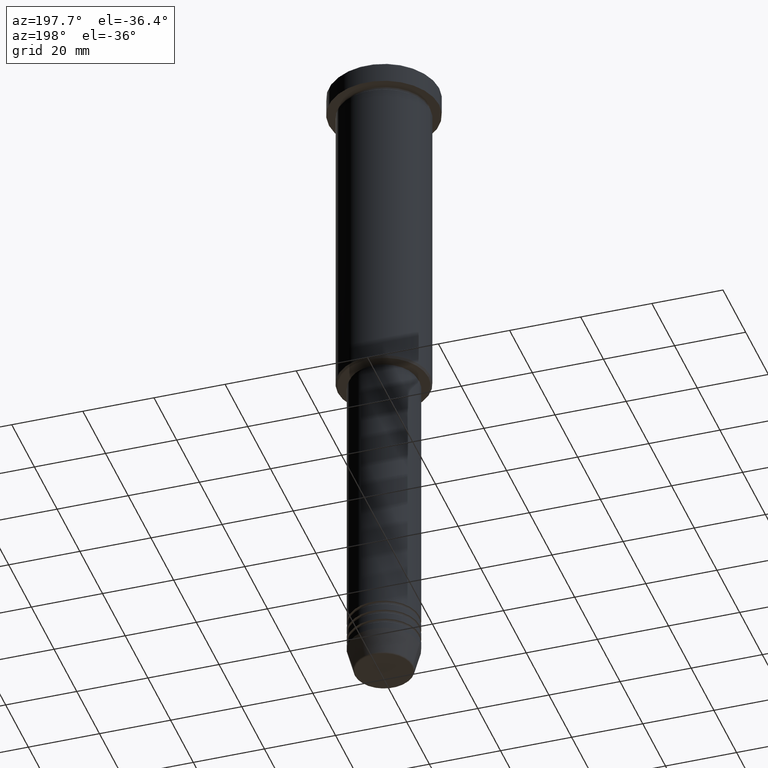
[diagram: clean part render]
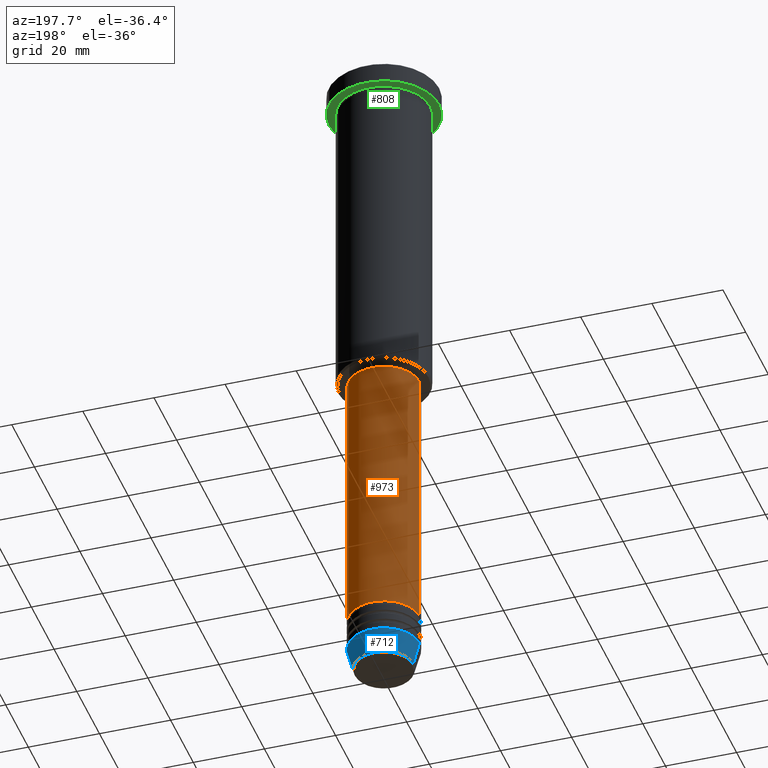
[diagram: same view with three faces highlighted in distinct colors, each labeled with its STEP entity id]
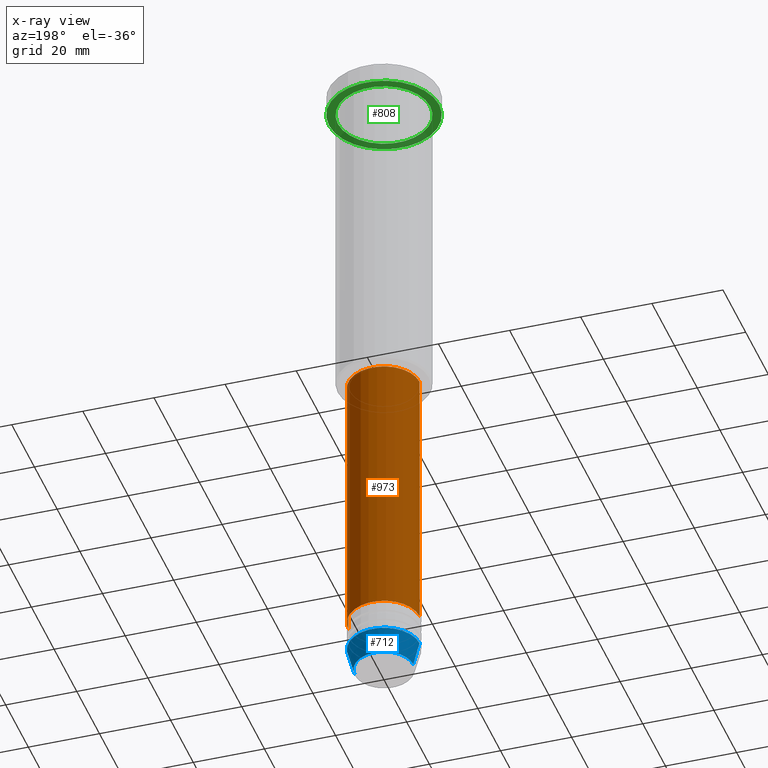
[diagram: x-ray of the same camera — body ghosted, the three highlighted faces saturated]
A machine part, auxiliary view with three faces highlighted in distinct colors.
The next image is the same camera in x-ray (body ghosted, the three faces saturated) — at least one of them is partly hidden behind the body in this view.
Their STEP definitions:

[orange] entity #973 — the highlighted cylindrical surface (partial cylindrical patch) has radius 10 mm, axis along (-0, -0, 1).
#52 = CARTESIAN_POINT ( 'NONE',  ( -10.00000000000000000, 1.224646799147353256E-15, -175.0000000000000000 ) ) ;
#114 = CYLINDRICAL_SURFACE ( 'NONE', #1135, 10.00000000000000000 ) ;
#117 = CIRCLE ( 'NONE', #579, 10.00000000000000000 ) ;
#124 = DIRECTION ( 'NONE',  ( -0.000000000000000000, -0.000000000000000000, 1.000000000000000000 ) ) ;
#143 = DIRECTION ( 'NONE',  ( -0.000000000000000000, -0.000000000000000000, 1.000000000000000000 ) ) ;
#181 = EDGE_CURVE ( 'NONE', #1130, #183, #257, .T. ) ;
#183 = VERTEX_POINT ( 'NONE', #1090 ) ;
#240 = VECTOR ( 'NONE', #996, 1000.000000000000000 ) ;
#243 = ORIENTED_EDGE ( 'NONE', *, *, #550, .F. ) ;
#257 = LINE ( 'NONE', #357, #928 ) ;
#296 = CARTESIAN_POINT ( 'NONE',  ( 10.00000000000000000, 0.000000000000000000, -97.00000000000002842 ) ) ;
#357 = CARTESIAN_POINT ( 'NONE',  ( -10.00000000000000000, 1.224646799147353256E-15, 0.000000000000000000 ) ) ;
#431 = AXIS2_PLACEMENT_3D ( 'NONE', #485, #755, #765 ) ;
#464 = VERTEX_POINT ( 'NONE', #1001 ) ;
#476 = EDGE_CURVE ( 'NONE', #464, #558, #643, .T. ) ;
#485 = CARTESIAN_POINT ( 'NONE',  ( 0.000000000000000000, 0.000000000000000000, -97.00000000000002842 ) ) ;
#550 = EDGE_CURVE ( 'NONE', #558, #183, #800, .T. ) ;
#558 = VERTEX_POINT ( 'NONE', #296 ) ;
#565 = CARTESIAN_POINT ( 'NONE',  ( 10.00000000000000000, 0.000000000000000000, 0.000000000000000000 ) ) ;
#574 = FACE_OUTER_BOUND ( 'NONE', #1151, .T. ) ;
#579 = AXIS2_PLACEMENT_3D ( 'NONE', #893, #143, #1146 ) ;
#611 = ORIENTED_EDGE ( 'NONE', *, *, #1166, .T. ) ;
#643 = LINE ( 'NONE', #565, #240 ) ;
#667 = ORIENTED_EDGE ( 'NONE', *, *, #181, .T. ) ;
#755 = DIRECTION ( 'NONE',  ( -0.000000000000000000, -0.000000000000000000, 1.000000000000000000 ) ) ;
#765 = DIRECTION ( 'NONE',  ( 1.000000000000000000, 0.000000000000000000, 0.000000000000000000 ) ) ;
#800 = CIRCLE ( 'NONE', #431, 10.00000000000000000 ) ;
#844 = CARTESIAN_POINT ( 'NONE',  ( 0.000000000000000000, 0.000000000000000000, 0.000000000000000000 ) ) ;
#863 = DIRECTION ( 'NONE',  ( 1.000000000000000000, 0.000000000000000000, 0.000000000000000000 ) ) ;
#893 = CARTESIAN_POINT ( 'NONE',  ( 0.000000000000000000, 0.000000000000000000, -175.0000000000000000 ) ) ;
#928 = VECTOR ( 'NONE', #978, 1000.000000000000000 ) ;
#973 = ADVANCED_FACE ( 'NONE', ( #574 ), #114, .T. ) ;
#978 = DIRECTION ( 'NONE',  ( -0.000000000000000000, -0.000000000000000000, 1.000000000000000000 ) ) ;
#996 = DIRECTION ( 'NONE',  ( -0.000000000000000000, -0.000000000000000000, 1.000000000000000000 ) ) ;
#1001 = CARTESIAN_POINT ( 'NONE',  ( 10.00000000000000000, 0.000000000000000000, -175.0000000000000000 ) ) ;
#1090 = CARTESIAN_POINT ( 'NONE',  ( -10.00000000000000000, 1.224646799147353256E-15, -97.00000000000002842 ) ) ;
#1117 = ORIENTED_EDGE ( 'NONE', *, *, #476, .F. ) ;
#1130 = VERTEX_POINT ( 'NONE', #52 ) ;
#1135 = AXIS2_PLACEMENT_3D ( 'NONE', #844, #124, #863 ) ;
#1146 = DIRECTION ( 'NONE',  ( 1.000000000000000000, 0.000000000000000000, 0.000000000000000000 ) ) ;
#1151 = EDGE_LOOP ( 'NONE', ( #611, #667, #243, #1117 ) ) ;
#1166 = EDGE_CURVE ( 'NONE', #464, #1130, #117, .T. ) ;

[blue] entity #712 — the highlighted conical surface has half-angle 15 deg.
#61 = FACE_OUTER_BOUND ( 'NONE', #658, .T. ) ;
#66 = CARTESIAN_POINT ( 'NONE',  ( 10.00000000000000000, 0.000000000000000000, -184.0000000000000284 ) ) ;
#107 = CARTESIAN_POINT ( 'NONE',  ( 0.000000000000000000, 0.000000000000000000, -184.0000000000000284 ) ) ;
#109 = EDGE_CURVE ( 'NONE', #960, #989, #1173, .T. ) ;
#163 = CARTESIAN_POINT ( 'NONE',  ( 0.000000000000000000, 0.000000000000000000, -190.6294095225512422 ) ) ;
#172 = CARTESIAN_POINT ( 'NONE',  ( -10.00000000000000000, 1.224646799147353256E-15, -184.0000000000000284 ) ) ;
#202 = EDGE_CURVE ( 'NONE', #580, #686, #633, .T. ) ;
#229 = CONICAL_SURFACE ( 'NONE', #977, 10.00000000000000000, 0.2617993877991500740 ) ;
#247 = DIRECTION ( 'NONE',  ( -0.000000000000000000, -0.000000000000000000, 1.000000000000000000 ) ) ;
#300 = CIRCLE ( 'NONE', #684, 10.00000000000000000 ) ;
#328 = VECTOR ( 'NONE', #639, 1000.000000000000000 ) ;
#344 = CARTESIAN_POINT ( 'NONE',  ( 0.000000000000000000, 0.000000000000000000, -184.0000000000000284 ) ) ;
#363 = EDGE_CURVE ( 'NONE', #686, #989, #300, .T. ) ;
#379 = DIRECTION ( 'NONE',  ( -0.000000000000000000, -0.000000000000000000, 1.000000000000000000 ) ) ;
#440 = AXIS2_PLACEMENT_3D ( 'NONE', #163, #247, #1161 ) ;
#478 = CARTESIAN_POINT ( 'NONE',  ( 8.223655072137198374, 0.000000000000000000, -190.6294095225512422 ) ) ;
#547 = DIRECTION ( 'NONE',  ( 0.2588190451025213501, 0.000000000000000000, 0.9659258262890680902 ) ) ;
#580 = VERTEX_POINT ( 'NONE', #478 ) ;
#610 = DIRECTION ( 'NONE',  ( 1.000000000000000000, 0.000000000000000000, 0.000000000000000000 ) ) ;
#619 = DIRECTION ( 'NONE',  ( -0.000000000000000000, -0.000000000000000000, 1.000000000000000000 ) ) ;
#632 = CIRCLE ( 'NONE', #440, 8.223655072137198374 ) ;
#633 = LINE ( 'NONE', #813, #1037 ) ;
#639 = DIRECTION ( 'NONE',  ( -0.2588190451025213501, 3.169619151431772337E-17, 0.9659258262890680902 ) ) ;
#658 = EDGE_LOOP ( 'NONE', ( #691, #801, #821, #754 ) ) ;
#684 = AXIS2_PLACEMENT_3D ( 'NONE', #107, #379, #750 ) ;
#686 = VERTEX_POINT ( 'NONE', #66 ) ;
#691 = ORIENTED_EDGE ( 'NONE', *, *, #1155, .T. ) ;
#712 = ADVANCED_FACE ( 'NONE', ( #61 ), #229, .T. ) ;
#750 = DIRECTION ( 'NONE',  ( 1.000000000000000000, 0.000000000000000000, 0.000000000000000000 ) ) ;
#754 = ORIENTED_EDGE ( 'NONE', *, *, #202, .F. ) ;
#801 = ORIENTED_EDGE ( 'NONE', *, *, #109, .T. ) ;
#813 = CARTESIAN_POINT ( 'NONE',  ( 10.00000000000000000, 0.000000000000000000, -184.0000000000000284 ) ) ;
#821 = ORIENTED_EDGE ( 'NONE', *, *, #363, .F. ) ;
#856 = CARTESIAN_POINT ( 'NONE',  ( -8.223655072137198374, 1.115877042642912448E-15, -190.6294095225512422 ) ) ;
#859 = CARTESIAN_POINT ( 'NONE',  ( -10.00000000000000000, 1.224646799147353256E-15, -184.0000000000000284 ) ) ;
#960 = VERTEX_POINT ( 'NONE', #856 ) ;
#977 = AXIS2_PLACEMENT_3D ( 'NONE', #344, #619, #610 ) ;
#989 = VERTEX_POINT ( 'NONE', #859 ) ;
#1037 = VECTOR ( 'NONE', #547, 1000.000000000000000 ) ;
#1155 = EDGE_CURVE ( 'NONE', #580, #960, #632, .T. ) ;
#1161 = DIRECTION ( 'NONE',  ( 1.000000000000000000, 0.000000000000000000, 0.000000000000000000 ) ) ;
#1173 = LINE ( 'NONE', #172, #328 ) ;

[green] entity #808 — the highlighted planar face has unit normal (0, 0, -1).
#14 = CARTESIAN_POINT ( 'NONE',  ( 0.000000000000000000, 0.000000000000000000, -5.999999999999995559 ) ) ;
#25 = AXIS2_PLACEMENT_3D ( 'NONE', #706, #244, #72 ) ;
#70 = EDGE_CURVE ( 'NONE', #1181, #1170, #180, .T. ) ;
#72 = DIRECTION ( 'NONE',  ( -1.000000000000000000, 0.000000000000000000, -0.000000000000000000 ) ) ;
#130 = CARTESIAN_POINT ( 'NONE',  ( 0.000000000000000000, 0.000000000000000000, -5.999999999999995559 ) ) ;
#134 = AXIS2_PLACEMENT_3D ( 'NONE', #980, #872, #1083 ) ;
#151 = FACE_OUTER_BOUND ( 'NONE', #728, .T. ) ;
#180 = CIRCLE ( 'NONE', #835, 15.50000000000000000 ) ;
#225 = ORIENTED_EDGE ( 'NONE', *, *, #864, .F. ) ;
#244 = DIRECTION ( 'NONE',  ( 0.000000000000000000, 0.000000000000000000, -1.000000000000000000 ) ) ;
#323 = CARTESIAN_POINT ( 'NONE',  ( 15.50000000000000000, 0.000000000000000000, -5.999999999999995559 ) ) ;
#358 = DIRECTION ( 'NONE',  ( -0.000000000000000000, -0.000000000000000000, 1.000000000000000000 ) ) ;
#365 = ORIENTED_EDGE ( 'NONE', *, *, #707, .T. ) ;
#376 = DIRECTION ( 'NONE',  ( 1.000000000000000000, 0.000000000000000000, 0.000000000000000000 ) ) ;
#484 = DIRECTION ( 'NONE',  ( -1.000000000000000000, 0.000000000000000000, 0.000000000000000000 ) ) ;
#513 = CARTESIAN_POINT ( 'NONE',  ( 0.000000000000000000, 0.000000000000000000, -5.999999999999995559 ) ) ;
#562 = VERTEX_POINT ( 'NONE', #846 ) ;
#666 = DIRECTION ( 'NONE',  ( -0.000000000000000000, -0.000000000000000000, 1.000000000000000000 ) ) ;
#692 = AXIS2_PLACEMENT_3D ( 'NONE', #130, #666, #484 ) ;
#695 = AXIS2_PLACEMENT_3D ( 'NONE', #14, #358, #376 ) ;
#706 = CARTESIAN_POINT ( 'NONE',  ( 0.000000000000000000, 15.50000000000000000, -5.999999999999995559 ) ) ;
#707 = EDGE_CURVE ( 'NONE', #562, #1133, #1057, .T. ) ;
#728 = EDGE_LOOP ( 'NONE', ( #225, #767 ) ) ;
#767 = ORIENTED_EDGE ( 'NONE', *, *, #70, .F. ) ;
#788 = DIRECTION ( 'NONE',  ( 1.000000000000000000, 0.000000000000000000, 0.000000000000000000 ) ) ;
#789 = EDGE_LOOP ( 'NONE', ( #921, #365 ) ) ;
#808 = ADVANCED_FACE ( 'NONE', ( #969, #151 ), #881, .T. ) ;
#811 = CIRCLE ( 'NONE', #695, 15.50000000000000000 ) ;
#835 = AXIS2_PLACEMENT_3D ( 'NONE', #513, #870, #788 ) ;
#846 = CARTESIAN_POINT ( 'NONE',  ( 13.00000000000000000, 1.592040838891559095E-15, -5.999999999999994671 ) ) ;
#864 = EDGE_CURVE ( 'NONE', #1170, #1181, #811, .T. ) ;
#870 = DIRECTION ( 'NONE',  ( -0.000000000000000000, -0.000000000000000000, 1.000000000000000000 ) ) ;
#872 = DIRECTION ( 'NONE',  ( -0.000000000000000000, -0.000000000000000000, 1.000000000000000000 ) ) ;
#881 = PLANE ( 'NONE',  #25 ) ;
#921 = ORIENTED_EDGE ( 'NONE', *, *, #1068, .T. ) ;
#958 = CARTESIAN_POINT ( 'NONE',  ( -13.00000000000000000, 0.000000000000000000, -5.999999999999994671 ) ) ;
#969 = FACE_BOUND ( 'NONE', #789, .T. ) ;
#980 = CARTESIAN_POINT ( 'NONE',  ( 0.000000000000000000, 0.000000000000000000, -5.999999999999995559 ) ) ;
#1056 = CARTESIAN_POINT ( 'NONE',  ( -15.50000000000000000, 1.898202538678397557E-15, -5.999999999999995559 ) ) ;
#1057 = CIRCLE ( 'NONE', #134, 13.00000000000000000 ) ;
#1068 = EDGE_CURVE ( 'NONE', #1133, #562, #1149, .T. ) ;
#1083 = DIRECTION ( 'NONE',  ( -1.000000000000000000, 0.000000000000000000, 0.000000000000000000 ) ) ;
#1133 = VERTEX_POINT ( 'NONE', #958 ) ;
#1149 = CIRCLE ( 'NONE', #692, 13.00000000000000000 ) ;
#1170 = VERTEX_POINT ( 'NONE', #323 ) ;
#1181 = VERTEX_POINT ( 'NONE', #1056 ) ;